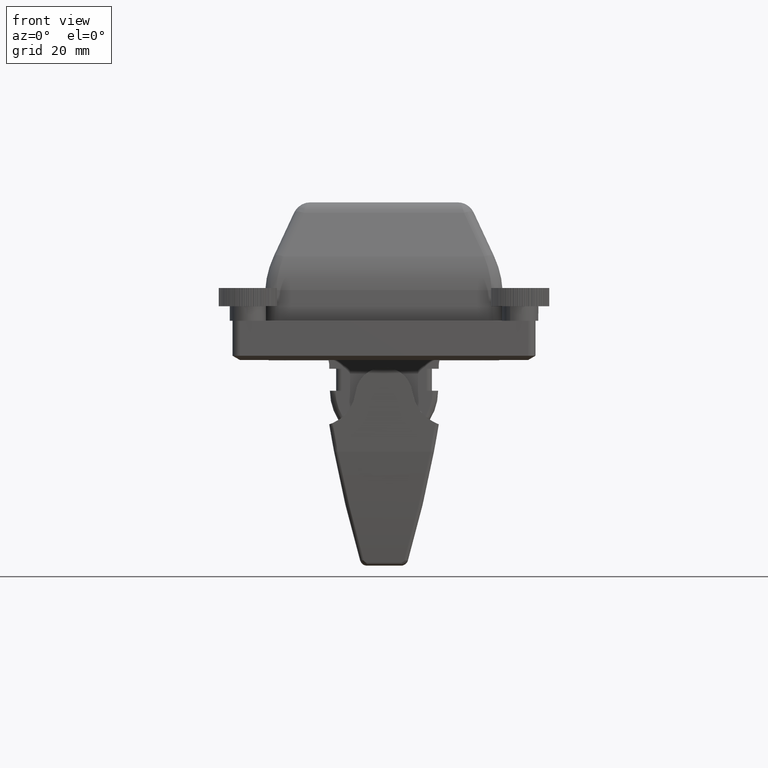
[diagram: clean part render]
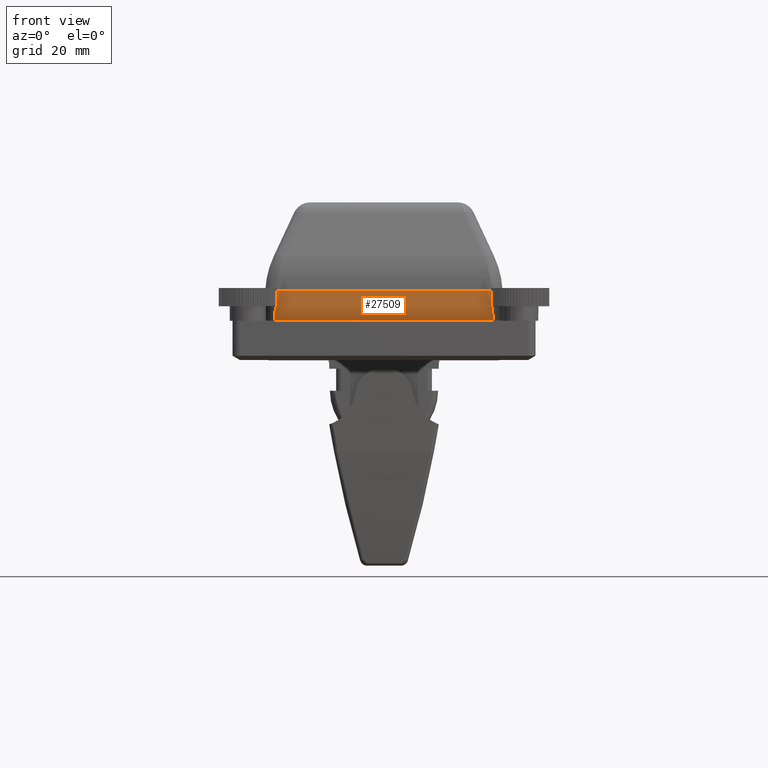
[diagram: same view with one face highlighted and labeled with its STEP entity id]
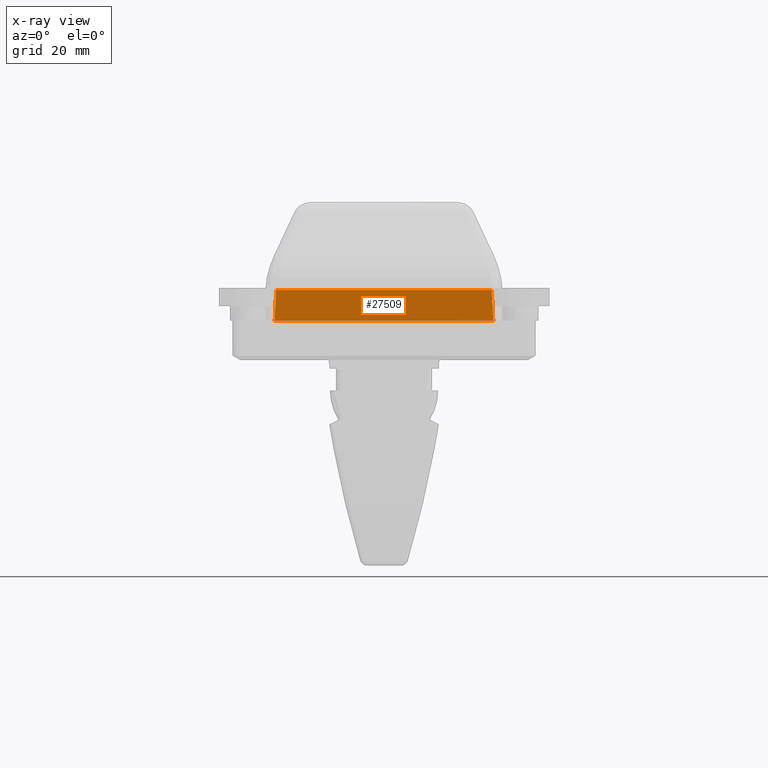
[diagram: x-ray of the same camera — body ghosted, the highlighted face saturated]
A machine part, front view. The second image highlights one B-rep face of the part: STEP entity #27509.
The next image is the same camera in x-ray: the body ghosted, the highlighted face saturated — about 0% of this face is hidden behind the body in this view.
In plain terms, the highlighted planar face has unit normal (-0, -0.9986, 0.0523).
Its self-contained STEP definition (entity closure, byte-faithful):
#423=PLANE('',#30573);
#1592=FACE_OUTER_BOUND('',#3062,.T.);
#3062=EDGE_LOOP('',(#21352,#21353,#21354,#21355));
#6265=LINE('',#44844,#8149);
#6269=LINE('',#44919,#8153);
#6270=LINE('',#44922,#8154);
#6271=LINE('',#44923,#8155);
#8149=VECTOR('',#36846,59.9899180769301);
#8153=VECTOR('',#36872,8.43422228207832);
#8154=VECTOR('',#36875,59.1082984757857);
#8155=VECTOR('',#36876,8.43422228207828);
#11294=VERTEX_POINT('',#44841);
#11295=VERTEX_POINT('',#44843);
#11301=VERTEX_POINT('',#44912);
#11303=VERTEX_POINT('',#44921);
#14823=EDGE_CURVE('',#11294,#11295,#6265,.T.);
#14836=EDGE_CURVE('',#11301,#11294,#6269,.T.);
#14837=EDGE_CURVE('',#11303,#11301,#6270,.T.);
#14838=EDGE_CURVE('',#11295,#11303,#6271,.T.);
#21352=ORIENTED_EDGE('',*,*,#14836,.F.);
#21353=ORIENTED_EDGE('',*,*,#14837,.F.);
#21354=ORIENTED_EDGE('',*,*,#14838,.F.);
#21355=ORIENTED_EDGE('',*,*,#14823,.F.);
#27509=ADVANCED_FACE('',(#1592),#423,.T.);
#30573=AXIS2_PLACEMENT_3D('',#44920,#36873,#36874);
#36846=DIRECTION('',(-1.,1.23428671144876E-31,-4.76848402232761E-16));
#36872=DIRECTION('',(0.0522644276887142,-0.0522644276887138,-0.997264688634237));
#36873=DIRECTION('center_axis',(-2.49563171137716E-17,-0.998629534754574,
0.0523359562429437));
#36874=DIRECTION('ref_axis',(1.,0.,7.105427357601E-16));
#36875=DIRECTION('',(1.,3.48221696219279E-17,1.14129498055203E-15));
#36876=DIRECTION('',(0.0522644276887135,0.0522644276887138,0.997264688634237));
#44841=CARTESIAN_POINT('',(29.9753053231406,-61.9908477313339,-38.0205850000001));
#44843=CARTESIAN_POINT('',(-30.0146127537895,-61.9908477313339,-38.0205850000001));
#44844=CARTESIAN_POINT('',(16.4855968743659,-61.9908477313339,-38.0205850000001));
#44912=CARTESIAN_POINT('',(29.5344955225684,-61.5500379307617,-29.6094329419913));
#44919=CARTESIAN_POINT('',(29.8141564391858,-61.8296988473791,-34.9456811181842));
#44920=CARTESIAN_POINT('Origin',(32.9711939274043,-61.9908477313339,-38.0205850000001));
#44921=CARTESIAN_POINT('',(-29.5738029532173,-61.5500379307617,-29.6094329419914));
#44922=CARTESIAN_POINT('',(32.6236255351992,-61.5500379307617,-29.6094329419913));
#44923=CARTESIAN_POINT('',(-29.932679411482,-61.9089143890264,-36.4572036961475));